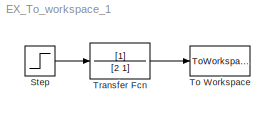
MODEL EX_To_workspace_1
KIND model
CONFIG AbsTol = auto
CONFIG FixedStep = auto
CONFIG MaxStep = 0.1
CONFIG MinStep = auto
CONFIG RelTol = 1e-3
CONFIG Solver = ode45
CONFIG SolverMode = Auto
CONFIG StartTime = 0.0
CONFIG StopTime = 100
BLOCK [Step] Step
  After = 1
  Before = 0
  SampleTime = 0
  Time = 1
  VectorParams1D = on
BLOCK [ToWorkspace] To Workspace
  Decimation = 1
  MaxDataPoints = inf
  SampleTime = -1
  SaveFormat = Array
  VariableName = simout
BLOCK [TransferFcn] Transfer Fcn
  AbsoluteTolerance = auto
  Denominator = [2 1]
  Numerator = [1]
  Realization = auto
LINE Step:1 -> Transfer Fcn:1
LINE Transfer Fcn:1 -> To Workspace:1
